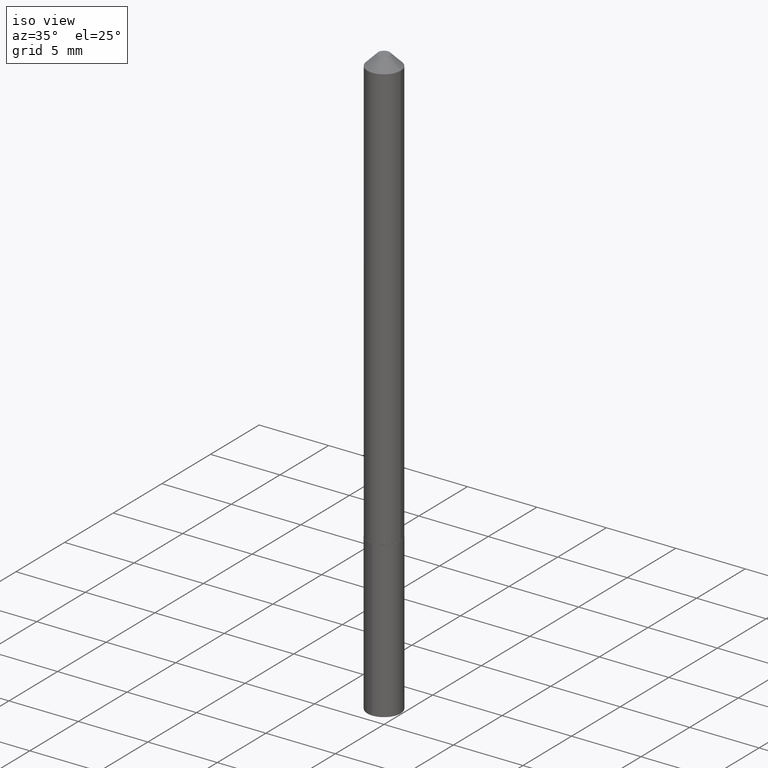
[diagram: clean part render]
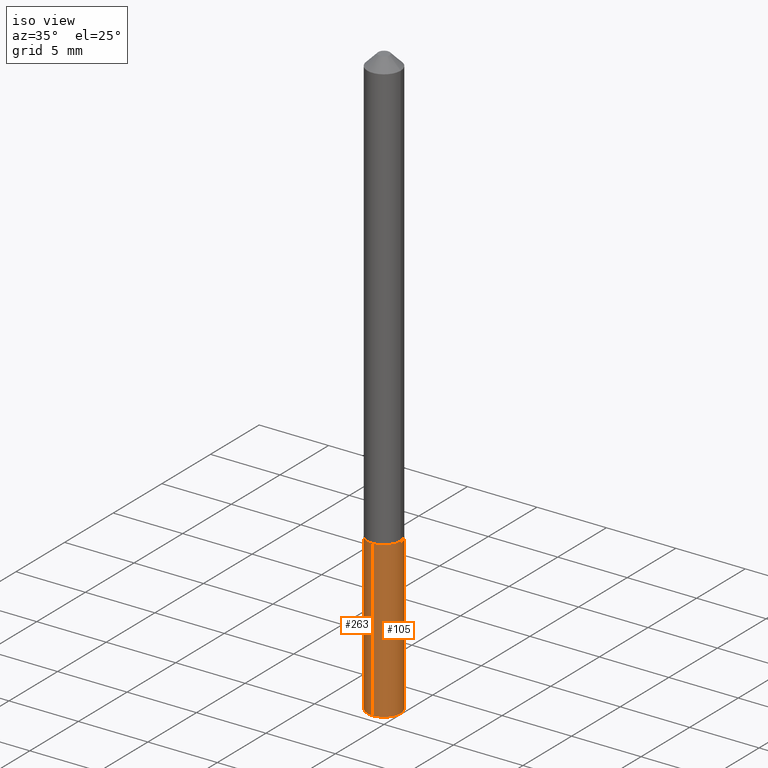
[diagram: same view with one multi-face feature highlighted, each face labeled with its STEP entity id]
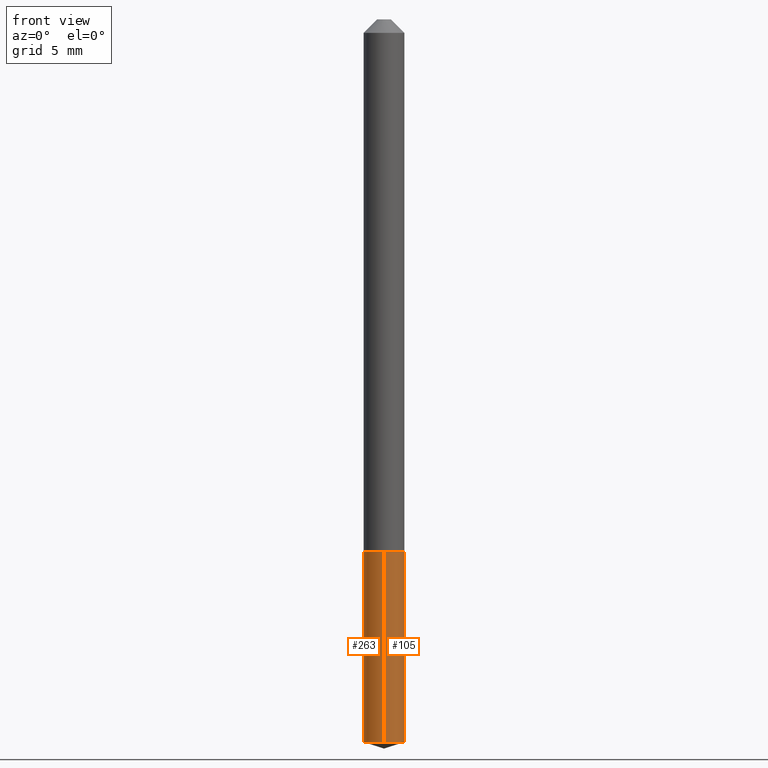
[diagram: same view with one multi-face feature highlighted, each face labeled with its STEP entity id]
A machine part, iso view. The highlighted faces form ONE feature: a constant-radius fillet chain: 2 tangent blend faces with common blend radius 1.2001 mm. The faces share edges in the B-rep.
A second angle (front view) of the same feature is appended — it is thin or edge-on in the first view.
Their STEP definitions:
[1] entity #263 (Cylinder):
#4 = DIRECTION ( 'NONE',  ( -2.445456796558740002E-29, 3.491498537311690917E-15, 1.000000000000000000 ) ) ;
#5 = CARTESIAN_POINT ( 'NONE',  ( -3.299449865206457842E-16, -0.04725000000000431633, -1.236199999999999966 ) ) ;
#8 = ORIENTED_EDGE ( 'NONE', *, *, #334, .T. ) ;
#10 = VERTEX_POINT ( 'NONE', #230 ) ;
#16 = EDGE_CURVE ( 'NONE', #10, #74, #29, .T. ) ;
#17 = CARTESIAN_POINT ( 'NONE',  ( -3.299449865206457842E-16, -0.04725000000000431633, -1.236199999999999966 ) ) ;
#25 = CARTESIAN_POINT ( 'NONE',  ( 3.357314426466883117E-16, 0.04724999999999567740, -1.236200000000000632 ) ) ;
#29 = LINE ( 'NONE', #169, #241 ) ;
#33 = CARTESIAN_POINT ( 'NONE',  ( 3.023088538206066600E-29, -4.316169231077897395E-15, -1.236200000000000410 ) ) ;
#41 = VERTEX_POINT ( 'NONE', #258 ) ;
#64 = DIRECTION ( 'NONE',  ( -2.445456796558740002E-29, 3.491498537311690917E-15, 1.000000000000000000 ) ) ;
#66 = ORIENTED_EDGE ( 'NONE', *, *, #16, .F. ) ;
#71 = DIRECTION ( 'NONE',  ( -2.445456796558740002E-29, 3.491498537311690917E-15, 1.000000000000000000 ) ) ;
#72 = EDGE_LOOP ( 'NONE', ( #66, #8, #330, #250 ) ) ;
#74 = VERTEX_POINT ( 'NONE', #25 ) ;
#93 = DIRECTION ( 'NONE',  ( -6.982962677686265922E-15, -1.000000000000000000, 5.781688875479922944E-15 ) ) ;
#137 = AXIS2_PLACEMENT_3D ( 'NONE', #33, #275, #93 ) ;
#138 = CARTESIAN_POINT ( 'NONE',  ( 4.103496565190980497E-29, -5.858720729524305573E-15, -1.678002132225468346 ) ) ;
#149 = CIRCLE ( 'NONE', #378, 0.04724999999999999339 ) ;
#152 = VECTOR ( 'NONE', #64, 39.37007874015748143 ) ;
#167 = AXIS2_PLACEMENT_3D ( 'NONE', #294, #4, #235 ) ;
#169 = CARTESIAN_POINT ( 'NONE',  ( 3.357314426466774648E-16, 0.04724999999999567740, -1.236200000000000632 ) ) ;
#217 = CIRCLE ( 'NONE', #137, 0.04724999999999999339 ) ;
#230 = CARTESIAN_POINT ( 'NONE',  ( 3.357314426466882624E-16, 0.04724999999999413003, -1.678002132225468790 ) ) ;
#235 = DIRECTION ( 'NONE',  ( -6.982962677686265922E-15, -1.000000000000000000, 5.781688875479922944E-15 ) ) ;
#241 = VECTOR ( 'NONE', #354, 39.37007874015748143 ) ;
#250 = ORIENTED_EDGE ( 'NONE', *, *, #285, .F. ) ;
#253 = DIRECTION ( 'NONE',  ( -6.982962677686265922E-15, -1.000000000000000000, 5.781688875479922944E-15 ) ) ;
#258 = CARTESIAN_POINT ( 'NONE',  ( -3.299449865206349866E-16, -0.04725000000000584288, -1.678002132225468124 ) ) ;
#263 = ADVANCED_FACE ( 'NONE', ( #362 ), #266, .T. ) ;
#266 = CYLINDRICAL_SURFACE ( 'NONE', #167, 0.04724999999999999339 ) ;
#275 = DIRECTION ( 'NONE',  ( -2.445456796558740002E-29, 3.491498537311690917E-15, 1.000000000000000000 ) ) ;
#285 = EDGE_CURVE ( 'NONE', #74, #367, #217, .T. ) ;
#294 = CARTESIAN_POINT ( 'NONE',  ( 3.023088538206066600E-29, -4.316169231077897395E-15, -1.236200000000000410 ) ) ;
#319 = EDGE_CURVE ( 'NONE', #41, #367, #329, .T. ) ;
#329 = LINE ( 'NONE', #5, #152 ) ;
#330 = ORIENTED_EDGE ( 'NONE', *, *, #319, .T. ) ;
#334 = EDGE_CURVE ( 'NONE', #10, #41, #149, .T. ) ;
#354 = DIRECTION ( 'NONE',  ( -2.445456796558740002E-29, 3.491498537311690917E-15, 1.000000000000000000 ) ) ;
#362 = FACE_OUTER_BOUND ( 'NONE', #72, .T. ) ;
#367 = VERTEX_POINT ( 'NONE', #17 ) ;
#378 = AXIS2_PLACEMENT_3D ( 'NONE', #138, #71, #253 ) ;
[2] entity #105 (Cylinder):
#5 = CARTESIAN_POINT ( 'NONE',  ( -3.299449865206457842E-16, -0.04725000000000431633, -1.236199999999999966 ) ) ;
#7 = CIRCLE ( 'NONE', #246, 0.04724999999999999339 ) ;
#10 = VERTEX_POINT ( 'NONE', #230 ) ;
#16 = EDGE_CURVE ( 'NONE', #10, #74, #29, .T. ) ;
#17 = CARTESIAN_POINT ( 'NONE',  ( -3.299449865206457842E-16, -0.04725000000000431633, -1.236199999999999966 ) ) ;
#18 = FACE_OUTER_BOUND ( 'NONE', #366, .T. ) ;
#25 = CARTESIAN_POINT ( 'NONE',  ( 3.357314426466883117E-16, 0.04724999999999567740, -1.236200000000000632 ) ) ;
#29 = LINE ( 'NONE', #169, #241 ) ;
#41 = VERTEX_POINT ( 'NONE', #258 ) ;
#64 = DIRECTION ( 'NONE',  ( -2.445456796558740002E-29, 3.491498537311690917E-15, 1.000000000000000000 ) ) ;
#74 = VERTEX_POINT ( 'NONE', #25 ) ;
#86 = DIRECTION ( 'NONE',  ( -2.445456796558740002E-29, 3.491498537311690917E-15, 1.000000000000000000 ) ) ;
#105 = ADVANCED_FACE ( 'NONE', ( #18 ), #136, .T. ) ;
#136 = CYLINDRICAL_SURFACE ( 'NONE', #207, 0.04724999999999999339 ) ;
#140 = CARTESIAN_POINT ( 'NONE',  ( 3.023088538206066600E-29, -4.316169231077897395E-15, -1.236200000000000410 ) ) ;
#146 = DIRECTION ( 'NONE',  ( -6.982962677686265922E-15, -1.000000000000000000, 5.781688875479922944E-15 ) ) ;
#152 = VECTOR ( 'NONE', #64, 39.37007874015748143 ) ;
#156 = DIRECTION ( 'NONE',  ( -2.445456796558740002E-29, 3.491498537311690917E-15, 1.000000000000000000 ) ) ;
#158 = ORIENTED_EDGE ( 'NONE', *, *, #319, .F. ) ;
#159 = CARTESIAN_POINT ( 'NONE',  ( 3.023088538206066600E-29, -4.316169231077897395E-15, -1.236200000000000410 ) ) ;
#169 = CARTESIAN_POINT ( 'NONE',  ( 3.357314426466774648E-16, 0.04724999999999567740, -1.236200000000000632 ) ) ;
#173 = CIRCLE ( 'NONE', #201, 0.04724999999999999339 ) ;
#175 = EDGE_CURVE ( 'NONE', #41, #10, #7, .T. ) ;
#186 = DIRECTION ( 'NONE',  ( -2.445456796558740002E-29, 3.491498537311690917E-15, 1.000000000000000000 ) ) ;
#201 = AXIS2_PLACEMENT_3D ( 'NONE', #159, #186, #282 ) ;
#207 = AXIS2_PLACEMENT_3D ( 'NONE', #140, #86, #349 ) ;
#212 = ORIENTED_EDGE ( 'NONE', *, *, #350, .F. ) ;
#230 = CARTESIAN_POINT ( 'NONE',  ( 3.357314426466882624E-16, 0.04724999999999413003, -1.678002132225468790 ) ) ;
#241 = VECTOR ( 'NONE', #354, 39.37007874015748143 ) ;
#246 = AXIS2_PLACEMENT_3D ( 'NONE', #296, #156, #146 ) ;
#258 = CARTESIAN_POINT ( 'NONE',  ( -3.299449865206349866E-16, -0.04725000000000584288, -1.678002132225468124 ) ) ;
#282 = DIRECTION ( 'NONE',  ( -6.982962677686265922E-15, -1.000000000000000000, 5.781688875479922944E-15 ) ) ;
#296 = CARTESIAN_POINT ( 'NONE',  ( 4.103496565190980497E-29, -5.858720729524305573E-15, -1.678002132225468346 ) ) ;
#309 = ORIENTED_EDGE ( 'NONE', *, *, #16, .T. ) ;
#319 = EDGE_CURVE ( 'NONE', #41, #367, #329, .T. ) ;
#329 = LINE ( 'NONE', #5, #152 ) ;
#349 = DIRECTION ( 'NONE',  ( -6.982962677686265922E-15, -1.000000000000000000, 5.781688875479922944E-15 ) ) ;
#350 = EDGE_CURVE ( 'NONE', #367, #74, #173, .T. ) ;
#354 = DIRECTION ( 'NONE',  ( -2.445456796558740002E-29, 3.491498537311690917E-15, 1.000000000000000000 ) ) ;
#366 = EDGE_LOOP ( 'NONE', ( #376, #309, #212, #158 ) ) ;
#367 = VERTEX_POINT ( 'NONE', #17 ) ;
#376 = ORIENTED_EDGE ( 'NONE', *, *, #175, .T. ) ;